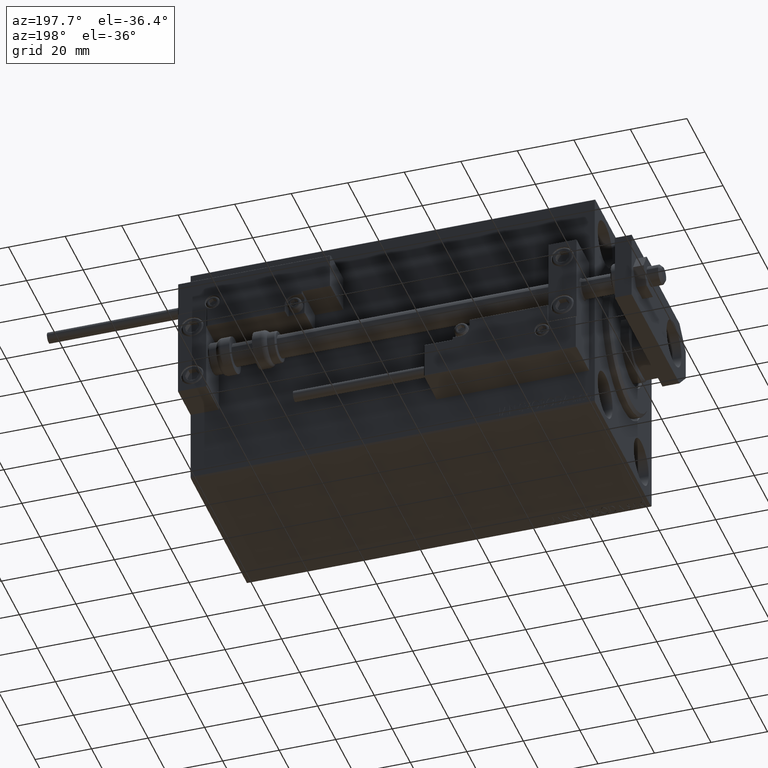
[diagram: clean part render]
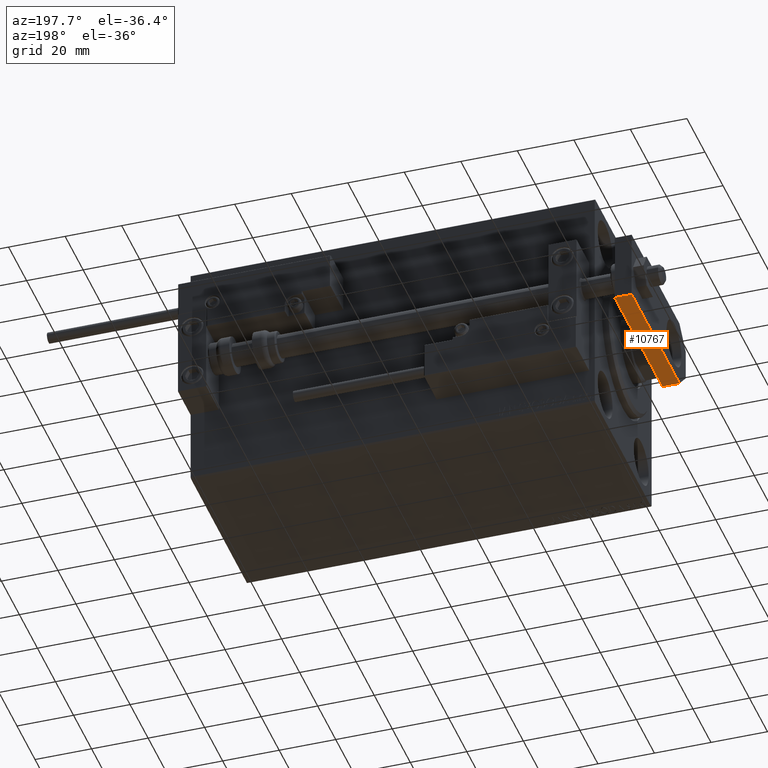
[diagram: same view with one face highlighted and labeled with its STEP entity id]
A machine part, auxiliary view. The second image highlights one B-rep face of the part: STEP entity #10767.
In plain terms, the highlighted planar face has unit normal (0, -0, 1).
Its self-contained STEP definition (entity closure, byte-faithful):
#2683 = EDGE_CURVE ( 'NONE', #27300, #32293, #46459, .T. ) ;
#3771 = VECTOR ( 'NONE', #26510, 1000.000000000000000 ) ;
#4586 = EDGE_CURVE ( 'NONE', #45632, #32293, #44742, .T. ) ;
#7780 = CARTESIAN_POINT ( 'NONE',  ( -12.49999999999999822, 60.00000000000000000, 6.000000000000000000 ) ) ;
#9068 = CARTESIAN_POINT ( 'NONE',  ( -12.50000000000000355, 7.000000000000013323, 0.000000000000000000 ) ) ;
#10253 = DIRECTION ( 'NONE',  ( -8.673617379884035472E-17, -1.000000000000000000, 0.000000000000000000 ) ) ;
#10767 = ADVANCED_FACE ( 'NONE', ( #14845 ), #33572, .F. ) ;
#12537 = DIRECTION ( 'NONE',  ( 0.000000000000000000, 0.000000000000000000, 1.000000000000000000 ) ) ;
#14845 = FACE_OUTER_BOUND ( 'NONE', #30988, .T. ) ;
#18156 = CARTESIAN_POINT ( 'NONE',  ( -12.49999999999999822, 60.00000000000000000, 6.000000000000000000 ) ) ;
#19084 = LINE ( 'NONE', #49457, #48649 ) ;
#19111 = EDGE_CURVE ( 'NONE', #45632, #38995, #45763, .T. ) ;
#20534 = ORIENTED_EDGE ( 'NONE', *, *, #2683, .T. ) ;
#21945 = CARTESIAN_POINT ( 'NONE',  ( -12.49999999999999822, 60.00000000000000000, 6.000000000000000000 ) ) ;
#21955 = VECTOR ( 'NONE', #41187, 1000.000000000000000 ) ;
#22299 = CARTESIAN_POINT ( 'NONE',  ( -12.49999999999999822, 60.00000000000000000, 6.000000000000000000 ) ) ;
#22427 = DIRECTION ( 'NONE',  ( 8.673617379884034239E-17, 1.000000000000000000, 0.000000000000000000 ) ) ;
#26510 = DIRECTION ( 'NONE',  ( -0.000000000000000000, -0.000000000000000000, -1.000000000000000000 ) ) ;
#27100 = ORIENTED_EDGE ( 'NONE', *, *, #33912, .T. ) ;
#27300 = VERTEX_POINT ( 'NONE', #9068 ) ;
#28390 = CARTESIAN_POINT ( 'NONE',  ( -12.49999999999999822, 60.00000000000000000, 0.000000000000000000 ) ) ;
#29279 = DIRECTION ( 'NONE',  ( 1.000000000000000000, -8.673617379884034239E-17, 0.000000000000000000 ) ) ;
#30988 = EDGE_LOOP ( 'NONE', ( #27100, #20534, #37015, #35694 ) ) ;
#32293 = VERTEX_POINT ( 'NONE', #45615 ) ;
#33572 = PLANE ( 'NONE',  #47088 ) ;
#33912 = EDGE_CURVE ( 'NONE', #38995, #27300, #19084, .T. ) ;
#35694 = ORIENTED_EDGE ( 'NONE', *, *, #19111, .T. ) ;
#37015 = ORIENTED_EDGE ( 'NONE', *, *, #4586, .F. ) ;
#38995 = VERTEX_POINT ( 'NONE', #28390 ) ;
#41187 = DIRECTION ( 'NONE',  ( -8.673617379884035472E-17, -1.000000000000000000, 0.000000000000000000 ) ) ;
#42906 = VECTOR ( 'NONE', #12537, 1000.000000000000000 ) ;
#44742 = LINE ( 'NONE', #21945, #21955 ) ;
#45615 = CARTESIAN_POINT ( 'NONE',  ( -12.50000000000000355, 7.000000000000013323, 6.000000000000000000 ) ) ;
#45632 = VERTEX_POINT ( 'NONE', #22299 ) ;
#45763 = LINE ( 'NONE', #7780, #3771 ) ;
#46459 = LINE ( 'NONE', #47209, #42906 ) ;
#47088 = AXIS2_PLACEMENT_3D ( 'NONE', #18156, #29279, #22427 ) ;
#47209 = CARTESIAN_POINT ( 'NONE',  ( -12.50000000000000355, 7.000000000000013323, 6.000000000000000000 ) ) ;
#48649 = VECTOR ( 'NONE', #10253, 1000.000000000000000 ) ;
#49457 = CARTESIAN_POINT ( 'NONE',  ( -12.49999999999999822, 60.00000000000000000, 0.000000000000000000 ) ) ;